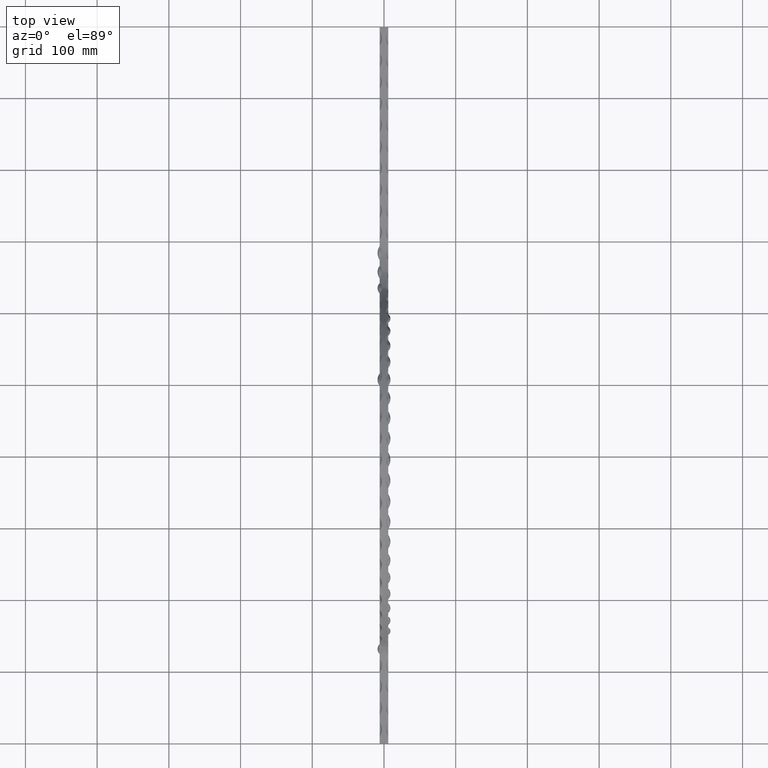
[diagram: clean part render]
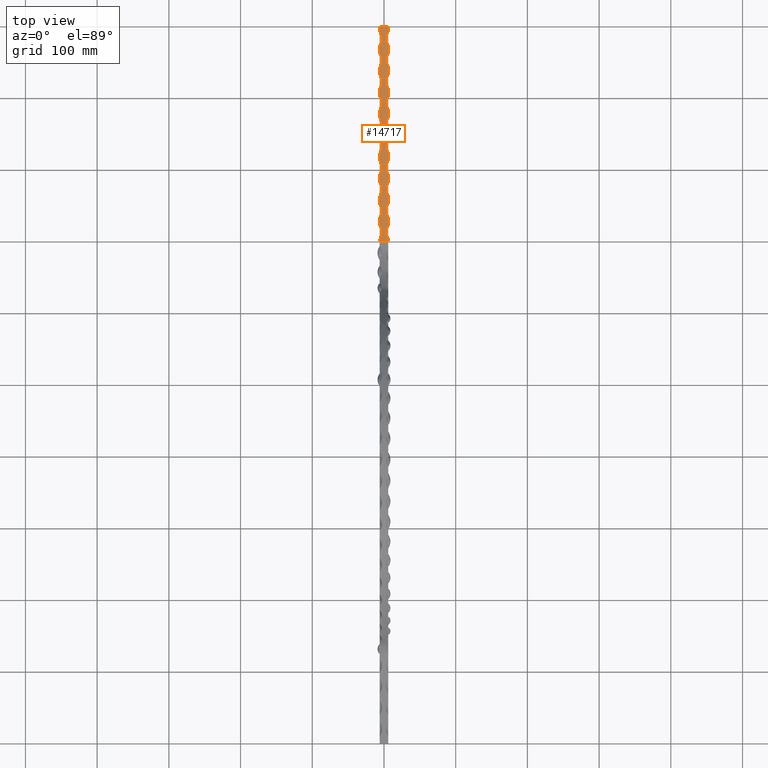
[diagram: same view with one face highlighted and labeled with its STEP entity id]
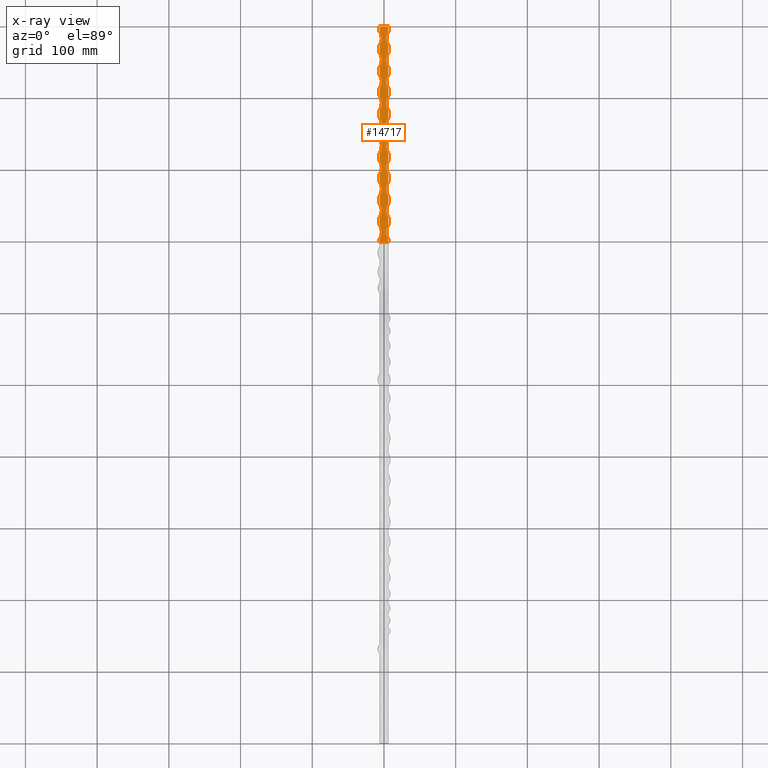
[diagram: x-ray of the same camera — body ghosted, the highlighted face saturated]
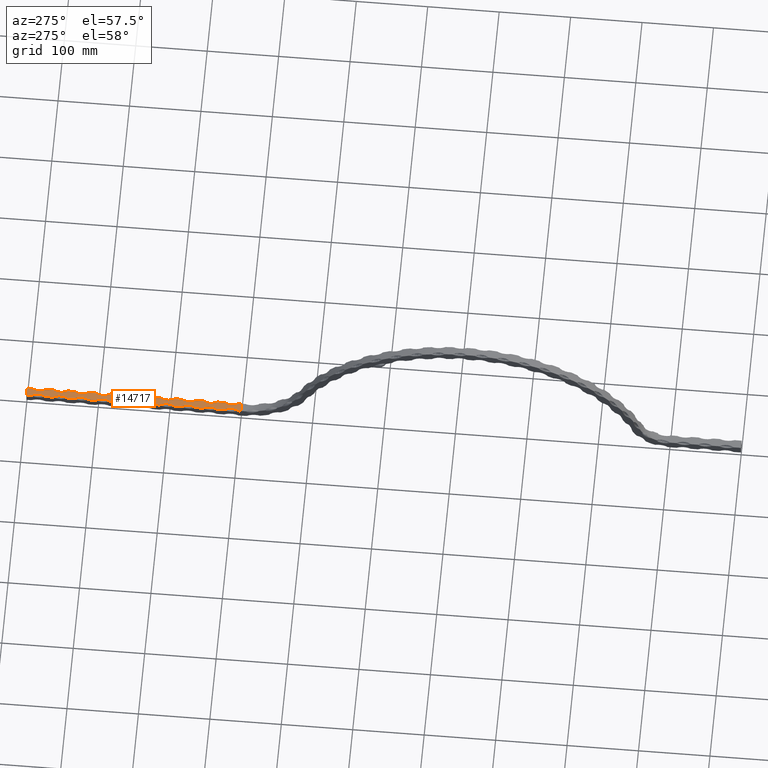
[diagram: same view with one face highlighted and labeled with its STEP entity id]
A machine part, top view. The second image highlights one B-rep face of the part: STEP entity #14717.
The next image is the same camera in x-ray: the body ghosted, the highlighted face saturated — about 0% of this face is hidden behind the body in this view.
A second angle (auxiliary view) of the same face is appended — the face is thin or edge-on in the first view.
In plain terms, the highlighted planar face has unit normal (0, -0, 1).
Its self-contained STEP definition (entity closure, byte-faithful):
#29 = VECTOR ( 'NONE', #7386, 1000.000000000000000 ) ;
#66 = LINE ( 'NONE', #232, #3141 ) ;
#121 = CARTESIAN_POINT ( 'NONE',  ( -6.000000000000000000, 943.2533592981684500, 5.999999999999980500 ) ) ;
#135 = DIRECTION ( 'NONE',  ( -3.628595894703780200E-015, -1.000000000000000000, -4.297021454254476900E-016 ) ) ;
#181 = AXIS2_PLACEMENT_3D ( 'NONE', #13811, #2719, #18037 ) ;
#227 = VERTEX_POINT ( 'NONE', #11702 ) ;
#232 = CARTESIAN_POINT ( 'NONE',  ( 6.000000000000000000, 700.0000000000001100, 6.000000000000005300 ) ) ;
#264 = CARTESIAN_POINT ( 'NONE',  ( -6.000000000000000000, 883.2533592981684500, 5.999999999999960000 ) ) ;
#368 = VERTEX_POINT ( 'NONE', #16281 ) ;
#395 = DIRECTION ( 'NONE',  ( -0.0000000000000000000, 4.163336342344336500E-016, -1.000000000000000000 ) ) ;
#498 = CIRCLE ( 'NONE', #2202, 18.16666666666666400 ) ;
#501 = ORIENTED_EDGE ( 'NONE', *, *, #14968, .F. ) ;
#559 = VECTOR ( 'NONE', #14732, 1000.000000000000000 ) ;
#566 = CARTESIAN_POINT ( 'NONE',  ( 6.000000000000000000, 733.2533592981682200, 6.000000000000018700 ) ) ;
#604 = DIRECTION ( 'NONE',  ( 5.347404476405571100E-015, -1.000000000000000000, -4.297021454254476900E-016 ) ) ;
#668 = CARTESIAN_POINT ( 'NONE',  ( 6.000000000000000000, 853.2533592981682200, 6.000000000000068400 ) ) ;
#696 = CIRCLE ( 'NONE', #16629, 18.16666666666666400 ) ;
#732 = VERTEX_POINT ( 'NONE', #17882 ) ;
#790 = DIRECTION ( 'NONE',  ( -3.628595894703780200E-015, -1.000000000000000000, -4.297021454254476900E-016 ) ) ;
#876 = CARTESIAN_POINT ( 'NONE',  ( 21.16666666666666100, 743.2533592981683300, 5.999999999999915600 ) ) ;
#880 = ORIENTED_EDGE ( 'NONE', *, *, #13761, .T. ) ;
#947 = CARTESIAN_POINT ( 'NONE',  ( -6.000000000000000000, 700.0000000000001100, 6.000000000000005300 ) ) ;
#1079 = EDGE_CURVE ( 'NONE', #9001, #8310, #5841, .T. ) ;
#1091 = DIRECTION ( 'NONE',  ( 0.0000000000000000000, 1.000000000000000000, 4.163336342344336500E-016 ) ) ;
#1194 = EDGE_CURVE ( 'NONE', #3243, #10227, #2798, .T. ) ;
#1237 = EDGE_LOOP ( 'NONE', ( #10133, #14137, #6837, #17156, #17326, #16327, #1317, #17198, #11978, #11305, #5521, #11100, #13637, #17381, #16396, #9273, #501, #15353, #4401, #3603, #9528, #6203, #8087, #16360, #10275, #10573, #6293, #14215, #10425, #16808, #14904, #8092, #16118, #10174, #17876, #1735, #3123, #17756, #11442, #12028, #8662, #9103, #880, #7860 ) ) ;
#1317 = ORIENTED_EDGE ( 'NONE', *, *, #8699, .F. ) ;
#1335 = EDGE_CURVE ( 'NONE', #16165, #16846, #10183, .T. ) ;
#1375 = AXIS2_PLACEMENT_3D ( 'NONE', #5623, #9958, #12586 ) ;
#1390 = CARTESIAN_POINT ( 'NONE',  ( 6.000000000000000000, 913.2533592981682200, 6.000000000000095000 ) ) ;
#1478 = CARTESIAN_POINT ( 'NONE',  ( -6.000000000000000000, 1000.000000000000000, 6.000000000000130600 ) ) ;
#1505 = CARTESIAN_POINT ( 'NONE',  ( 6.000000000000000000, 783.2533592981683300, 5.999999999999925400 ) ) ;
#1537 = VECTOR ( 'NONE', #11964, 1000.000000000000000 ) ;
#1542 = CARTESIAN_POINT ( 'NONE',  ( 6.000000000000000000, 700.0000000000001100, 6.000000000000005300 ) ) ;
#1579 = LINE ( 'NONE', #17161, #8524 ) ;
#1595 = DIRECTION ( 'NONE',  ( 5.347404476405571100E-015, -1.000000000000000000, -4.297021454254476900E-016 ) ) ;
#1636 = DIRECTION ( 'NONE',  ( 0.0000000000000000000, 1.000000000000000000, 4.163336342344336500E-016 ) ) ;
#1648 = VERTEX_POINT ( 'NONE', #2617 ) ;
#1674 = DIRECTION ( 'NONE',  ( 0.0000000000000000000, 1.000000000000000000, 4.163336342344336500E-016 ) ) ;
#1695 = DIRECTION ( 'NONE',  ( -0.0000000000000000000, 4.163336342344336500E-016, -1.000000000000000000 ) ) ;
#1725 = CARTESIAN_POINT ( 'NONE',  ( -6.000000000000000000, 873.2533592981683300, 5.999999999999954700 ) ) ;
#1735 = ORIENTED_EDGE ( 'NONE', *, *, #10706, .T. ) ;
#1851 = CARTESIAN_POINT ( 'NONE',  ( -6.000000000000000000, 913.2533592981684500, 5.999999999999969800 ) ) ;
#1908 = AXIS2_PLACEMENT_3D ( 'NONE', #18074, #13792, #14044 ) ;
#2134 = CARTESIAN_POINT ( 'NONE',  ( 6.000000000000000000, 700.0000000000001100, 6.000000000000005300 ) ) ;
#2173 = VERTEX_POINT ( 'NONE', #9956 ) ;
#2202 = AXIS2_PLACEMENT_3D ( 'NONE', #13828, #5456, #6844 ) ;
#2267 = DIRECTION ( 'NONE',  ( 0.0000000000000000000, 1.000000000000000000, 4.163336342344336500E-016 ) ) ;
#2390 = DIRECTION ( 'NONE',  ( -4.392510819904576100E-015, -1.000000000000000000, -4.297021454254476900E-016 ) ) ;
#2417 = VERTEX_POINT ( 'NONE', #2577 ) ;
#2454 = CARTESIAN_POINT ( 'NONE',  ( 6.000000000000000000, 700.0000000000001100, 6.000000000000005300 ) ) ;
#2467 = EDGE_CURVE ( 'NONE', #5774, #3159, #13518, .T. ) ;
#2553 = LINE ( 'NONE', #1542, #3647 ) ;
#2577 = CARTESIAN_POINT ( 'NONE',  ( -6.000000000000000000, 853.2533592981683300, 5.999999999999950300 ) ) ;
#2617 = CARTESIAN_POINT ( 'NONE',  ( -6.000000000000000000, 993.2533592981682200, 5.999999999999993800 ) ) ;
#2661 = DIRECTION ( 'NONE',  ( -3.628595894703780200E-015, -1.000000000000000000, -4.297021454254476900E-016 ) ) ;
#2715 = CARTESIAN_POINT ( 'NONE',  ( -6.000000000000000000, 723.2533592981683300, 5.999999999999906700 ) ) ;
#2719 = DIRECTION ( 'NONE',  ( -0.0000000000000000000, 4.163336342344336500E-016, -1.000000000000000000 ) ) ;
#2761 = VECTOR ( 'NONE', #8145, 1000.000000000000000 ) ;
#2781 = AXIS2_PLACEMENT_3D ( 'NONE', #876, #13448, #14927 ) ;
#2798 = LINE ( 'NONE', #13938, #9746 ) ;
#2880 = CIRCLE ( 'NONE', #8982, 18.16666666666666400 ) ;
#3036 = CARTESIAN_POINT ( 'NONE',  ( 6.000000000000000000, 963.2533592981684500, 5.999999999999984900 ) ) ;
#3043 = EDGE_CURVE ( 'NONE', #10227, #11381, #3919, .T. ) ;
#3123 = ORIENTED_EDGE ( 'NONE', *, *, #8060, .T. ) ;
#3141 = VECTOR ( 'NONE', #16895, 1000.000000000000000 ) ;
#3144 = VERTEX_POINT ( 'NONE', #1478 ) ;
#3159 = VERTEX_POINT ( 'NONE', #7308 ) ;
#3171 = EDGE_CURVE ( 'NONE', #9702, #2417, #14618, .T. ) ;
#3178 = CARTESIAN_POINT ( 'NONE',  ( 21.16666666666666100, 803.2533592981683300, 5.999999999999936100 ) ) ;
#3240 = AXIS2_PLACEMENT_3D ( 'NONE', #8003, #8248, #16662 ) ;
#3243 = VERTEX_POINT ( 'NONE', #9062 ) ;
#3415 = LINE ( 'NONE', #2454, #2761 ) ;
#3422 = EDGE_CURVE ( 'NONE', #12928, #15650, #4136, .T. ) ;
#3482 = CARTESIAN_POINT ( 'NONE',  ( -6.000000000000000000, 700.0000000000001100, 6.000000000000005300 ) ) ;
#3603 = ORIENTED_EDGE ( 'NONE', *, *, #8602, .T. ) ;
#3647 = VECTOR ( 'NONE', #12765, 1000.000000000000000 ) ;
#3674 = EDGE_CURVE ( 'NONE', #9717, #15650, #15036, .T. ) ;
#3711 = VECTOR ( 'NONE', #1091, 1000.000000000000000 ) ;
#3739 = LINE ( 'NONE', #15785, #29 ) ;
#3774 = LINE ( 'NONE', #6242, #16397 ) ;
#3864 = CARTESIAN_POINT ( 'NONE',  ( -6.000000000000000000, 783.2533592981683300, 5.999999999999925400 ) ) ;
#3919 = CIRCLE ( 'NONE', #181, 18.16666666666666400 ) ;
#3987 = VERTEX_POINT ( 'NONE', #4498 ) ;
#4013 = CARTESIAN_POINT ( 'NONE',  ( -6.000000000000000000, 823.2533592981683300, 5.999999999999941400 ) ) ;
#4015 = LINE ( 'NONE', #2134, #10526 ) ;
#4035 = VERTEX_POINT ( 'NONE', #566 ) ;
#4062 = CARTESIAN_POINT ( 'NONE',  ( -6.000000000000000000, 733.2533592981683300, 5.999999999999912100 ) ) ;
#4136 = CIRCLE ( 'NONE', #4269, 18.16666666666666400 ) ;
#4215 = VECTOR ( 'NONE', #12421, 1000.000000000000000 ) ;
#4267 = VECTOR ( 'NONE', #1636, 1000.000000000000000 ) ;
#4269 = AXIS2_PLACEMENT_3D ( 'NONE', #8385, #12559, #135 ) ;
#4285 = VECTOR ( 'NONE', #8448, 1000.000000000000000 ) ;
#4401 = ORIENTED_EDGE ( 'NONE', *, *, #13336, .F. ) ;
#4498 = CARTESIAN_POINT ( 'NONE',  ( -6.000000000000000000, 813.2533592981683300, 5.999999999999936100 ) ) ;
#4550 = VECTOR ( 'NONE', #13519, 1000.000000000000000 ) ;
#4636 = CARTESIAN_POINT ( 'NONE',  ( -21.16666666666666100, 923.2533592981684500, 5.999999999999974200 ) ) ;
#4752 = DIRECTION ( 'NONE',  ( 0.0000000000000000000, 1.000000000000000000, 4.163336342344336500E-016 ) ) ;
#4790 = EDGE_CURVE ( 'NONE', #15964, #5570, #6488, .T. ) ;
#4802 = VERTEX_POINT ( 'NONE', #3864 ) ;
#4807 = VERTEX_POINT ( 'NONE', #16369 ) ;
#4818 = EDGE_CURVE ( 'NONE', #12928, #4807, #13261, .T. ) ;
#4904 = CARTESIAN_POINT ( 'NONE',  ( -6.000000000000000000, 700.0000000000001100, 6.000000000000005300 ) ) ;
#4950 = DIRECTION ( 'NONE',  ( -3.628595894703780200E-015, -1.000000000000000000, -4.297021454254476900E-016 ) ) ;
#4982 = CARTESIAN_POINT ( 'NONE',  ( -6.000000000000000000, 703.2533592981683300, 5.999999999999902300 ) ) ;
#5061 = EDGE_CURVE ( 'NONE', #5557, #3243, #8200, .T. ) ;
#5070 = VECTOR ( 'NONE', #9183, 1000.000000000000000 ) ;
#5165 = DIRECTION ( 'NONE',  ( 0.0000000000000000000, -1.000000000000000000, -4.163336342344336500E-016 ) ) ;
#5220 = CARTESIAN_POINT ( 'NONE',  ( 6.000000000000000000, 1000.000000000000000, 6.000000000000130600 ) ) ;
#5255 = AXIS2_PLACEMENT_3D ( 'NONE', #11158, #10980, #2661 ) ;
#5456 = DIRECTION ( 'NONE',  ( -0.0000000000000000000, 4.163336342344336500E-016, -1.000000000000000000 ) ) ;
#5521 = ORIENTED_EDGE ( 'NONE', *, *, #16341, .F. ) ;
#5548 = AXIS2_PLACEMENT_3D ( 'NONE', #16316, #13545, #2390 ) ;
#5557 = VERTEX_POINT ( 'NONE', #1390 ) ;
#5570 = VERTEX_POINT ( 'NONE', #1505 ) ;
#5595 = AXIS2_PLACEMENT_3D ( 'NONE', #17215, #12846, #8623 ) ;
#5623 = CARTESIAN_POINT ( 'NONE',  ( 21.16666666666666100, 833.2533592981683300, 5.999999999999945800 ) ) ;
#5689 = DIRECTION ( 'NONE',  ( 0.0000000000000000000, 1.000000000000000000, 4.163336342344336500E-016 ) ) ;
#5774 = VERTEX_POINT ( 'NONE', #10438 ) ;
#5785 = VERTEX_POINT ( 'NONE', #17393 ) ;
#5841 = CIRCLE ( 'NONE', #5255, 18.16666666666666400 ) ;
#5959 = EDGE_CURVE ( 'NONE', #11999, #4035, #2553, .T. ) ;
#5994 = VERTEX_POINT ( 'NONE', #14233 ) ;
#6169 = DIRECTION ( 'NONE',  ( -0.0000000000000000000, 4.163336342344336500E-016, -1.000000000000000000 ) ) ;
#6183 = DIRECTION ( 'NONE',  ( 1.000000000000000000, 0.0000000000000000000, 0.0000000000000000000 ) ) ;
#6188 = DIRECTION ( 'NONE',  ( -0.0000000000000000000, 4.163336342344336500E-016, -1.000000000000000000 ) ) ;
#6202 = AXIS2_PLACEMENT_3D ( 'NONE', #13913, #6983, #16921 ) ;
#6203 = ORIENTED_EDGE ( 'NONE', *, *, #14892, .T. ) ;
#6242 = CARTESIAN_POINT ( 'NONE',  ( -6.000000000000000000, 1000.000000000000000, 6.000000000000130600 ) ) ;
#6293 = ORIENTED_EDGE ( 'NONE', *, *, #16583, .T. ) ;
#6297 = EDGE_CURVE ( 'NONE', #732, #5774, #18058, .T. ) ;
#6488 = CIRCLE ( 'NONE', #5548, 18.16666666666666400 ) ;
#6633 = LINE ( 'NONE', #11896, #559 ) ;
#6694 = VERTEX_POINT ( 'NONE', #12354 ) ;
#6837 = ORIENTED_EDGE ( 'NONE', *, *, #4818, .F. ) ;
#6844 = DIRECTION ( 'NONE',  ( -3.628595894703780200E-015, -1.000000000000000000, -4.297021454254476900E-016 ) ) ;
#6916 = VERTEX_POINT ( 'NONE', #8987 ) ;
#6933 = CARTESIAN_POINT ( 'NONE',  ( -6.000000000000000000, 793.2533592981683300, 5.999999999999931600 ) ) ;
#6983 = DIRECTION ( 'NONE',  ( -0.0000000000000000000, 4.163336342344336500E-016, -1.000000000000000000 ) ) ;
#7178 = DIRECTION ( 'NONE',  ( 0.0000000000000000000, 1.000000000000000000, 4.163336342344336500E-016 ) ) ;
#7185 = FACE_OUTER_BOUND ( 'NONE', #1237, .T. ) ;
#7236 = LINE ( 'NONE', #7310, #13375 ) ;
#7308 = CARTESIAN_POINT ( 'NONE',  ( 6.000000000000000000, 823.2533592981682200, 6.000000000000056800 ) ) ;
#7310 = CARTESIAN_POINT ( 'NONE',  ( -6.000000000000000000, 700.0000000000001100, 6.000000000000005300 ) ) ;
#7386 = DIRECTION ( 'NONE',  ( 1.000000000000000000, 0.0000000000000000000, 0.0000000000000000000 ) ) ;
#7442 = LINE ( 'NONE', #17432, #13135 ) ;
#7522 = LINE ( 'NONE', #15522, #11458 ) ;
#7588 = CARTESIAN_POINT ( 'NONE',  ( 21.16666666666666100, 893.2533592981684500, 5.999999999999964500 ) ) ;
#7654 = VERTEX_POINT ( 'NONE', #1851 ) ;
#7860 = ORIENTED_EDGE ( 'NONE', *, *, #15782, .F. ) ;
#7876 = LINE ( 'NONE', #16711, #4215 ) ;
#7937 = DIRECTION ( 'NONE',  ( 0.0000000000000000000, -4.163336342344336500E-016, 1.000000000000000000 ) ) ;
#7942 = DIRECTION ( 'NONE',  ( 0.0000000000000000000, 1.000000000000000000, 4.163336342344336500E-016 ) ) ;
#8003 = CARTESIAN_POINT ( 'NONE',  ( -21.16666666666666100, 833.2533592981683300, 5.999999999999945800 ) ) ;
#8031 = VERTEX_POINT ( 'NONE', #6933 ) ;
#8060 = EDGE_CURVE ( 'NONE', #16869, #5557, #7522, .T. ) ;
#8069 = VECTOR ( 'NONE', #1674, 1000.000000000000000 ) ;
#8087 = ORIENTED_EDGE ( 'NONE', *, *, #10873, .T. ) ;
#8092 = ORIENTED_EDGE ( 'NONE', *, *, #11389, .T. ) ;
#8145 = DIRECTION ( 'NONE',  ( 0.0000000000000000000, 1.000000000000000000, 4.163336342344336500E-016 ) ) ;
#8200 = CIRCLE ( 'NONE', #12086, 18.16666666666666400 ) ;
#8248 = DIRECTION ( 'NONE',  ( -0.0000000000000000000, 4.163336342344336500E-016, -1.000000000000000000 ) ) ;
#8297 = LINE ( 'NONE', #13412, #11130 ) ;
#8310 = VERTEX_POINT ( 'NONE', #4062 ) ;
#8385 = CARTESIAN_POINT ( 'NONE',  ( -21.16666666666666100, 953.2533592981684500, 5.999999999999984900 ) ) ;
#8448 = DIRECTION ( 'NONE',  ( 0.0000000000000000000, 1.000000000000000000, 4.163336342344336500E-016 ) ) ;
#8524 = VECTOR ( 'NONE', #4752, 1000.000000000000000 ) ;
#8584 = AXIS2_PLACEMENT_3D ( 'NONE', #7588, #14650, #604 ) ;
#8602 = EDGE_CURVE ( 'NONE', #14324, #15101, #12560, .T. ) ;
#8623 = DIRECTION ( 'NONE',  ( 5.347404476405571100E-015, -1.000000000000000000, -4.297021454254476900E-016 ) ) ;
#8662 = ORIENTED_EDGE ( 'NONE', *, *, #17712, .T. ) ;
#8684 = AXIS2_PLACEMENT_3D ( 'NONE', #10458, #13292, #4950 ) ;
#8699 = EDGE_CURVE ( 'NONE', #17083, #7654, #6633, .T. ) ;
#8700 = CARTESIAN_POINT ( 'NONE',  ( -21.16666666666666100, 863.2533592981683300, 5.999999999999954700 ) ) ;
#8733 = LINE ( 'NONE', #17776, #5070 ) ;
#8861 = EDGE_CURVE ( 'NONE', #5570, #732, #3415, .T. ) ;
#8922 = LINE ( 'NONE', #12027, #1537 ) ;
#8936 = EDGE_CURVE ( 'NONE', #5785, #2173, #9470, .T. ) ;
#8941 = DIRECTION ( 'NONE',  ( 0.0000000000000000000, 1.000000000000000000, 4.163336342344336500E-016 ) ) ;
#8982 = AXIS2_PLACEMENT_3D ( 'NONE', #9313, #17975, #13743 ) ;
#8987 = CARTESIAN_POINT ( 'NONE',  ( 6.000000000000000000, 703.2533592981682200, 6.000000000000006200 ) ) ;
#9001 = VERTEX_POINT ( 'NONE', #15811 ) ;
#9013 = CIRCLE ( 'NONE', #2781, 18.16666666666666400 ) ;
#9062 = CARTESIAN_POINT ( 'NONE',  ( 6.000000000000000000, 933.2533592981684500, 5.999999999999974200 ) ) ;
#9103 = ORIENTED_EDGE ( 'NONE', *, *, #1335, .T. ) ;
#9183 = DIRECTION ( 'NONE',  ( 0.0000000000000000000, 1.000000000000000000, 4.163336342344336500E-016 ) ) ;
#9185 = EDGE_CURVE ( 'NONE', #4802, #5994, #9239, .T. ) ;
#9231 = DIRECTION ( 'NONE',  ( 0.0000000000000000000, 1.000000000000000000, 4.163336342344336500E-016 ) ) ;
#9239 = CIRCLE ( 'NONE', #8684, 18.16666666666666400 ) ;
#9241 = CARTESIAN_POINT ( 'NONE',  ( -21.16666666666666100, 893.2533592981684500, 5.999999999999964500 ) ) ;
#9273 = ORIENTED_EDGE ( 'NONE', *, *, #9185, .T. ) ;
#9312 = EDGE_CURVE ( 'NONE', #4802, #8031, #16271, .T. ) ;
#9313 = CARTESIAN_POINT ( 'NONE',  ( 21.16666666666666100, 713.2533592981683300, 5.999999999999906700 ) ) ;
#9434 = CARTESIAN_POINT ( 'NONE',  ( 6.000000000000000000, 700.0000000000001100, 6.000000000000005300 ) ) ;
#9470 = LINE ( 'NONE', #15583, #4285 ) ;
#9506 = VERTEX_POINT ( 'NONE', #17400 ) ;
#9523 = VECTOR ( 'NONE', #17904, 1000.000000000000000 ) ;
#9528 = ORIENTED_EDGE ( 'NONE', *, *, #13902, .F. ) ;
#9660 = CIRCLE ( 'NONE', #1375, 18.16666666666666400 ) ;
#9685 = CARTESIAN_POINT ( 'NONE',  ( 6.000000000000000000, 903.2533592981684500, 5.999999999999964500 ) ) ;
#9702 = VERTEX_POINT ( 'NONE', #1725 ) ;
#9717 = VERTEX_POINT ( 'NONE', #14250 ) ;
#9746 = VECTOR ( 'NONE', #5689, 1000.000000000000000 ) ;
#9956 = CARTESIAN_POINT ( 'NONE',  ( 6.000000000000000000, 883.2533592981682200, 6.000000000000080800 ) ) ;
#9958 = DIRECTION ( 'NONE',  ( -0.0000000000000000000, 4.163336342344336500E-016, -1.000000000000000000 ) ) ;
#10133 = ORIENTED_EDGE ( 'NONE', *, *, #12972, .F. ) ;
#10174 = ORIENTED_EDGE ( 'NONE', *, *, #14519, .T. ) ;
#10183 = CIRCLE ( 'NONE', #5595, 18.16666666666666400 ) ;
#10227 = VERTEX_POINT ( 'NONE', #10261 ) ;
#10261 = CARTESIAN_POINT ( 'NONE',  ( 6.000000000000000000, 943.2533592981682200, 6.000000000000106600 ) ) ;
#10275 = ORIENTED_EDGE ( 'NONE', *, *, #5959, .T. ) ;
#10319 = EDGE_CURVE ( 'NONE', #4035, #15029, #9013, .T. ) ;
#10425 = ORIENTED_EDGE ( 'NONE', *, *, #8861, .T. ) ;
#10438 = CARTESIAN_POINT ( 'NONE',  ( 6.000000000000000000, 813.2533592981683300, 5.999999999999936100 ) ) ;
#10458 = CARTESIAN_POINT ( 'NONE',  ( -21.16666666666666100, 773.2533592981683300, 5.999999999999925400 ) ) ;
#10526 = VECTOR ( 'NONE', #9231, 1000.000000000000000 ) ;
#10573 = ORIENTED_EDGE ( 'NONE', *, *, #10319, .T. ) ;
#10645 = DIRECTION ( 'NONE',  ( 0.0000000000000000000, 1.000000000000000000, 4.163336342344336500E-016 ) ) ;
#10706 = EDGE_CURVE ( 'NONE', #2173, #16869, #13616, .T. ) ;
#10772 = VERTEX_POINT ( 'NONE', #668 ) ;
#10873 = EDGE_CURVE ( 'NONE', #227, #6916, #4015, .T. ) ;
#10980 = DIRECTION ( 'NONE',  ( -0.0000000000000000000, 4.163336342344336500E-016, -1.000000000000000000 ) ) ;
#11100 = ORIENTED_EDGE ( 'NONE', *, *, #17927, .T. ) ;
#11130 = VECTOR ( 'NONE', #7942, 1000.000000000000000 ) ;
#11158 = CARTESIAN_POINT ( 'NONE',  ( -21.16666666666666100, 743.2533592981683300, 5.999999999999915600 ) ) ;
#11240 = VECTOR ( 'NONE', #2267, 1000.000000000000000 ) ;
#11266 = AXIS2_PLACEMENT_3D ( 'NONE', #3178, #6188, #13152 ) ;
#11281 = DIRECTION ( 'NONE',  ( -3.628595894703780200E-015, -1.000000000000000000, -4.297021454254476900E-016 ) ) ;
#11305 = ORIENTED_EDGE ( 'NONE', *, *, #3171, .T. ) ;
#11357 = CARTESIAN_POINT ( 'NONE',  ( -6.000000000000000000, 700.0000000000001100, 6.000000000000005300 ) ) ;
#11381 = VERTEX_POINT ( 'NONE', #3036 ) ;
#11389 = EDGE_CURVE ( 'NONE', #3159, #9506, #9660, .T. ) ;
#11442 = ORIENTED_EDGE ( 'NONE', *, *, #1194, .T. ) ;
#11458 = VECTOR ( 'NONE', #7178, 1000.000000000000000 ) ;
#11504 = CARTESIAN_POINT ( 'NONE',  ( -6.000000000000000000, 903.2533592981684500, 5.999999999999964500 ) ) ;
#11702 = CARTESIAN_POINT ( 'NONE',  ( 6.000000000000000000, 700.0000000000001100, 6.000000000000005300 ) ) ;
#11804 = LINE ( 'NONE', #15665, #14014 ) ;
#11896 = CARTESIAN_POINT ( 'NONE',  ( -6.000000000000000000, 700.0000000000001100, 6.000000000000005300 ) ) ;
#11964 = DIRECTION ( 'NONE',  ( 0.0000000000000000000, 1.000000000000000000, 4.163336342344336500E-016 ) ) ;
#11978 = ORIENTED_EDGE ( 'NONE', *, *, #12714, .F. ) ;
#11999 = VERTEX_POINT ( 'NONE', #16376 ) ;
#12027 = CARTESIAN_POINT ( 'NONE',  ( -6.000000000000000000, 700.0000000000001100, 6.000000000000005300 ) ) ;
#12028 = ORIENTED_EDGE ( 'NONE', *, *, #3043, .T. ) ;
#12086 = AXIS2_PLACEMENT_3D ( 'NONE', #16926, #12751, #1595 ) ;
#12122 = CARTESIAN_POINT ( 'NONE',  ( -6.000000000000000000, 963.2533592981684500, 5.999999999999984900 ) ) ;
#12354 = CARTESIAN_POINT ( 'NONE',  ( -6.000000000000000000, 843.2533592981683300, 5.999999999999945800 ) ) ;
#12421 = DIRECTION ( 'NONE',  ( 0.0000000000000000000, 1.000000000000000000, 4.163336342344336500E-016 ) ) ;
#12459 = CIRCLE ( 'NONE', #6202, 18.16666666666666400 ) ;
#12559 = DIRECTION ( 'NONE',  ( -0.0000000000000000000, 4.163336342344336500E-016, -1.000000000000000000 ) ) ;
#12560 = CIRCLE ( 'NONE', #16682, 18.16666666666666400 ) ;
#12564 = VERTEX_POINT ( 'NONE', #5220 ) ;
#12586 = DIRECTION ( 'NONE',  ( -4.392510819904576100E-015, -1.000000000000000000, -4.297021454254476900E-016 ) ) ;
#12714 = EDGE_CURVE ( 'NONE', #9702, #17636, #7876, .T. ) ;
#12717 = EDGE_CURVE ( 'NONE', #3987, #8031, #498, .T. ) ;
#12723 = VERTEX_POINT ( 'NONE', #4013 ) ;
#12745 = EDGE_CURVE ( 'NONE', #9506, #10772, #66, .T. ) ;
#12751 = DIRECTION ( 'NONE',  ( -0.0000000000000000000, 4.163336342344336500E-016, -1.000000000000000000 ) ) ;
#12765 = DIRECTION ( 'NONE',  ( 0.0000000000000000000, 1.000000000000000000, 4.163336342344336500E-016 ) ) ;
#12846 = DIRECTION ( 'NONE',  ( -0.0000000000000000000, 4.163336342344336500E-016, -1.000000000000000000 ) ) ;
#12853 = AXIS2_PLACEMENT_3D ( 'NONE', #9241, #13535, #790 ) ;
#12928 = VERTEX_POINT ( 'NONE', #12122 ) ;
#12972 = EDGE_CURVE ( 'NONE', #1648, #3144, #8733, .T. ) ;
#13057 = EDGE_CURVE ( 'NONE', #17083, #17636, #17534, .T. ) ;
#13135 = VECTOR ( 'NONE', #10645, 1000.000000000000000 ) ;
#13152 = DIRECTION ( 'NONE',  ( -4.392510819904576100E-015, -1.000000000000000000, -4.297021454254476900E-016 ) ) ;
#13261 = LINE ( 'NONE', #13671, #9523 ) ;
#13292 = DIRECTION ( 'NONE',  ( -0.0000000000000000000, 4.163336342344336500E-016, -1.000000000000000000 ) ) ;
#13336 = EDGE_CURVE ( 'NONE', #14324, #8310, #1579, .T. ) ;
#13365 = EDGE_CURVE ( 'NONE', #9717, #7654, #696, .T. ) ;
#13375 = VECTOR ( 'NONE', #8941, 1000.000000000000000 ) ;
#13412 = CARTESIAN_POINT ( 'NONE',  ( 6.000000000000000000, 700.0000000000001100, 6.000000000000005300 ) ) ;
#13448 = DIRECTION ( 'NONE',  ( -0.0000000000000000000, 4.163336342344336500E-016, -1.000000000000000000 ) ) ;
#13518 = LINE ( 'NONE', #9434, #3711 ) ;
#13519 = DIRECTION ( 'NONE',  ( 0.0000000000000000000, 1.000000000000000000, 4.163336342344336500E-016 ) ) ;
#13535 = DIRECTION ( 'NONE',  ( -0.0000000000000000000, 4.163336342344336500E-016, -1.000000000000000000 ) ) ;
#13545 = DIRECTION ( 'NONE',  ( -0.0000000000000000000, 4.163336342344336500E-016, -1.000000000000000000 ) ) ;
#13579 = CIRCLE ( 'NONE', #1908, 18.16666666666666400 ) ;
#13616 = CIRCLE ( 'NONE', #8584, 18.16666666666666400 ) ;
#13637 = ORIENTED_EDGE ( 'NONE', *, *, #15548, .F. ) ;
#13671 = CARTESIAN_POINT ( 'NONE',  ( -6.000000000000000000, 700.0000000000001100, 6.000000000000005300 ) ) ;
#13743 = DIRECTION ( 'NONE',  ( -4.392510819904576100E-015, -1.000000000000000000, -4.297021454254476900E-016 ) ) ;
#13761 = EDGE_CURVE ( 'NONE', #16846, #12564, #11804, .T. ) ;
#13779 = LINE ( 'NONE', #11357, #8069 ) ;
#13792 = DIRECTION ( 'NONE',  ( -0.0000000000000000000, 4.163336342344336500E-016, -1.000000000000000000 ) ) ;
#13811 = CARTESIAN_POINT ( 'NONE',  ( 21.16666666666666100, 953.2533592981684500, 5.999999999999984900 ) ) ;
#13815 = CARTESIAN_POINT ( 'NONE',  ( 6.000000000000000000, 763.2533592981682200, 6.000000000000032000 ) ) ;
#13828 = CARTESIAN_POINT ( 'NONE',  ( -21.16666666666666100, 803.2533592981683300, 5.999999999999936100 ) ) ;
#13902 = EDGE_CURVE ( 'NONE', #368, #15101, #13779, .T. ) ;
#13913 = CARTESIAN_POINT ( 'NONE',  ( 21.16666666666666100, 863.2533592981683300, 5.999999999999954700 ) ) ;
#13938 = CARTESIAN_POINT ( 'NONE',  ( 6.000000000000000000, 700.0000000000001100, 6.000000000000005300 ) ) ;
#14014 = VECTOR ( 'NONE', #16954, 1000.000000000000000 ) ;
#14044 = DIRECTION ( 'NONE',  ( -3.628595894703780200E-015, -1.000000000000000000, -4.297021454254476900E-016 ) ) ;
#14137 = ORIENTED_EDGE ( 'NONE', *, *, #16830, .T. ) ;
#14215 = ORIENTED_EDGE ( 'NONE', *, *, #4790, .T. ) ;
#14233 = CARTESIAN_POINT ( 'NONE',  ( -6.000000000000000000, 763.2533592981683300, 5.999999999999921000 ) ) ;
#14250 = CARTESIAN_POINT ( 'NONE',  ( -6.000000000000000000, 933.2533592981684500, 5.999999999999974200 ) ) ;
#14252 = EDGE_CURVE ( 'NONE', #6916, #11999, #2880, .T. ) ;
#14324 = VERTEX_POINT ( 'NONE', #2715 ) ;
#14519 = EDGE_CURVE ( 'NONE', #10772, #5785, #12459, .T. ) ;
#14618 = CIRCLE ( 'NONE', #15728, 18.16666666666666400 ) ;
#14650 = DIRECTION ( 'NONE',  ( -0.0000000000000000000, 4.163336342344336500E-016, -1.000000000000000000 ) ) ;
#14717 = ADVANCED_FACE ( 'NONE', ( #7185 ), #17819, .T. ) ;
#14732 = DIRECTION ( 'NONE',  ( 0.0000000000000000000, 1.000000000000000000, 4.163336342344336500E-016 ) ) ;
#14892 = EDGE_CURVE ( 'NONE', #368, #227, #3739, .T. ) ;
#14904 = ORIENTED_EDGE ( 'NONE', *, *, #2467, .T. ) ;
#14927 = DIRECTION ( 'NONE',  ( -4.392510819904576100E-015, -1.000000000000000000, -4.297021454254476900E-016 ) ) ;
#14968 = EDGE_CURVE ( 'NONE', #9001, #5994, #8922, .T. ) ;
#15029 = VERTEX_POINT ( 'NONE', #17618 ) ;
#15036 = LINE ( 'NONE', #3482, #4550 ) ;
#15101 = VERTEX_POINT ( 'NONE', #4982 ) ;
#15353 = ORIENTED_EDGE ( 'NONE', *, *, #1079, .T. ) ;
#15481 = AXIS2_PLACEMENT_3D ( 'NONE', #947, #7937, #5165 ) ;
#15522 = CARTESIAN_POINT ( 'NONE',  ( 6.000000000000000000, 700.0000000000001100, 6.000000000000005300 ) ) ;
#15548 = EDGE_CURVE ( 'NONE', #3987, #12723, #15677, .T. ) ;
#15583 = CARTESIAN_POINT ( 'NONE',  ( 6.000000000000000000, 700.0000000000001100, 6.000000000000005300 ) ) ;
#15650 = VERTEX_POINT ( 'NONE', #121 ) ;
#15665 = CARTESIAN_POINT ( 'NONE',  ( 6.000000000000000000, 700.0000000000001100, 6.000000000000005300 ) ) ;
#15677 = LINE ( 'NONE', #4904, #11240 ) ;
#15680 = CARTESIAN_POINT ( 'NONE',  ( -6.000000000000000000, 700.0000000000001100, 6.000000000000005300 ) ) ;
#15728 = AXIS2_PLACEMENT_3D ( 'NONE', #8700, #395, #11281 ) ;
#15782 = EDGE_CURVE ( 'NONE', #3144, #12564, #3774, .T. ) ;
#15785 = CARTESIAN_POINT ( 'NONE',  ( -6.000000000000000000, 700.0000000000001100, 6.000000000000005300 ) ) ;
#15811 = CARTESIAN_POINT ( 'NONE',  ( -6.000000000000000000, 753.2533592981683300, 5.999999999999915600 ) ) ;
#15964 = VERTEX_POINT ( 'NONE', #13815 ) ;
#16118 = ORIENTED_EDGE ( 'NONE', *, *, #12745, .T. ) ;
#16165 = VERTEX_POINT ( 'NONE', #17920 ) ;
#16271 = LINE ( 'NONE', #15680, #4267 ) ;
#16281 = CARTESIAN_POINT ( 'NONE',  ( -6.000000000000000000, 700.0000000000001100, 6.000000000000005300 ) ) ;
#16316 = CARTESIAN_POINT ( 'NONE',  ( 21.16666666666666100, 773.2533592981683300, 5.999999999999925400 ) ) ;
#16327 = ORIENTED_EDGE ( 'NONE', *, *, #13365, .T. ) ;
#16341 = EDGE_CURVE ( 'NONE', #6694, #2417, #7236, .T. ) ;
#16360 = ORIENTED_EDGE ( 'NONE', *, *, #14252, .T. ) ;
#16369 = CARTESIAN_POINT ( 'NONE',  ( -6.000000000000000000, 973.2533592981682200, 5.999999999999989300 ) ) ;
#16376 = CARTESIAN_POINT ( 'NONE',  ( 6.000000000000000000, 723.2533592981683300, 5.999999999999906700 ) ) ;
#16396 = ORIENTED_EDGE ( 'NONE', *, *, #9312, .F. ) ;
#16397 = VECTOR ( 'NONE', #6183, 1000.000000000000000 ) ;
#16405 = CIRCLE ( 'NONE', #3240, 18.16666666666666400 ) ;
#16583 = EDGE_CURVE ( 'NONE', #15029, #15964, #7442, .T. ) ;
#16616 = CARTESIAN_POINT ( 'NONE',  ( 6.000000000000000000, 993.2533592981682200, 5.999999999999993800 ) ) ;
#16629 = AXIS2_PLACEMENT_3D ( 'NONE', #4636, #1695, #17272 ) ;
#16662 = DIRECTION ( 'NONE',  ( -3.628595894703780200E-015, -1.000000000000000000, -4.297021454254476900E-016 ) ) ;
#16682 = AXIS2_PLACEMENT_3D ( 'NONE', #17373, #6169, #17549 ) ;
#16711 = CARTESIAN_POINT ( 'NONE',  ( -6.000000000000000000, 700.0000000000001100, 6.000000000000005300 ) ) ;
#16808 = ORIENTED_EDGE ( 'NONE', *, *, #6297, .T. ) ;
#16830 = EDGE_CURVE ( 'NONE', #1648, #4807, #13579, .T. ) ;
#16846 = VERTEX_POINT ( 'NONE', #16616 ) ;
#16869 = VERTEX_POINT ( 'NONE', #9685 ) ;
#16895 = DIRECTION ( 'NONE',  ( 0.0000000000000000000, 1.000000000000000000, 4.163336342344336500E-016 ) ) ;
#16921 = DIRECTION ( 'NONE',  ( -4.392510819904576100E-015, -1.000000000000000000, -4.297021454254476900E-016 ) ) ;
#16926 = CARTESIAN_POINT ( 'NONE',  ( 21.16666666666666100, 923.2533592981684500, 5.999999999999974200 ) ) ;
#16954 = DIRECTION ( 'NONE',  ( 0.0000000000000000000, 1.000000000000000000, 4.163336342344336500E-016 ) ) ;
#17083 = VERTEX_POINT ( 'NONE', #11504 ) ;
#17156 = ORIENTED_EDGE ( 'NONE', *, *, #3422, .T. ) ;
#17161 = CARTESIAN_POINT ( 'NONE',  ( -6.000000000000000000, 700.0000000000001100, 6.000000000000005300 ) ) ;
#17198 = ORIENTED_EDGE ( 'NONE', *, *, #13057, .T. ) ;
#17215 = CARTESIAN_POINT ( 'NONE',  ( 21.16666666666666100, 983.2533592981682200, 5.999999999999993800 ) ) ;
#17272 = DIRECTION ( 'NONE',  ( -3.628595894703780200E-015, -1.000000000000000000, -4.297021454254476900E-016 ) ) ;
#17326 = ORIENTED_EDGE ( 'NONE', *, *, #3674, .F. ) ;
#17373 = CARTESIAN_POINT ( 'NONE',  ( -21.16666666666666100, 713.2533592981683300, 5.999999999999906700 ) ) ;
#17381 = ORIENTED_EDGE ( 'NONE', *, *, #12717, .T. ) ;
#17393 = CARTESIAN_POINT ( 'NONE',  ( 6.000000000000000000, 873.2533592981683300, 5.999999999999954700 ) ) ;
#17400 = CARTESIAN_POINT ( 'NONE',  ( 6.000000000000000000, 843.2533592981683300, 5.999999999999945800 ) ) ;
#17432 = CARTESIAN_POINT ( 'NONE',  ( 6.000000000000000000, 700.0000000000001100, 6.000000000000005300 ) ) ;
#17534 = CIRCLE ( 'NONE', #12853, 18.16666666666666400 ) ;
#17549 = DIRECTION ( 'NONE',  ( -3.628595894703780200E-015, -1.000000000000000000, -4.297021454254476900E-016 ) ) ;
#17618 = CARTESIAN_POINT ( 'NONE',  ( 6.000000000000000000, 753.2533592981683300, 5.999999999999915600 ) ) ;
#17636 = VERTEX_POINT ( 'NONE', #264 ) ;
#17712 = EDGE_CURVE ( 'NONE', #11381, #16165, #8297, .T. ) ;
#17756 = ORIENTED_EDGE ( 'NONE', *, *, #5061, .T. ) ;
#17776 = CARTESIAN_POINT ( 'NONE',  ( -6.000000000000000000, 700.0000000000001100, 6.000000000000005300 ) ) ;
#17819 = PLANE ( 'NONE',  #15481 ) ;
#17876 = ORIENTED_EDGE ( 'NONE', *, *, #8936, .T. ) ;
#17882 = CARTESIAN_POINT ( 'NONE',  ( 6.000000000000000000, 793.2533592981682200, 6.000000000000044400 ) ) ;
#17904 = DIRECTION ( 'NONE',  ( 0.0000000000000000000, 1.000000000000000000, 4.163336342344336500E-016 ) ) ;
#17920 = CARTESIAN_POINT ( 'NONE',  ( 6.000000000000000000, 973.2533592981679900, 6.000000000000119000 ) ) ;
#17927 = EDGE_CURVE ( 'NONE', #6694, #12723, #16405, .T. ) ;
#17975 = DIRECTION ( 'NONE',  ( -0.0000000000000000000, 4.163336342344336500E-016, -1.000000000000000000 ) ) ;
#18037 = DIRECTION ( 'NONE',  ( 5.347404476405571100E-015, -1.000000000000000000, -4.297021454254476900E-016 ) ) ;
#18058 = CIRCLE ( 'NONE', #11266, 18.16666666666666400 ) ;
#18074 = CARTESIAN_POINT ( 'NONE',  ( -21.16666666666666100, 983.2533592981682200, 5.999999999999993800 ) ) ;